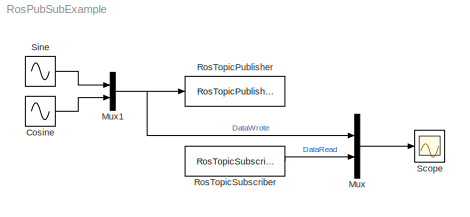
MODEL RosPubSubExample
KIND model
BLOCK [Sin] Cosine
  Phase = pi/2
  Ports = [0, 1]
  SID = 13
  SampleTime = 0
BLOCK [Mux] Mux
  DisplayOption = bar
  Inputs = 2
  Ports = [2, 1]
  SID = 10
BLOCK [Mux] Mux1
  DisplayOption = bar
  Inputs = 2
  Ports = [2, 1]
  SID = 14
BLOCK [Reference] RosTopicPublisher  REF=RosToolbox/RosTopicPublisher
  MultiThreadCoSim = auto
  Ports = [1]
  QueueSize = 1
  SID = 15
  SourceBlock = RosToolbox/RosTopicPublisher
  SourceProductName = Ros Toolbox
  TopicName = /PubSubExample
BLOCK [Reference] RosTopicSubscriber  REF=RosToolbox/RosTopicSubscriber
  MessageSize = 2
  MultiThreadCoSim = auto
  Ports = [0, 1]
  SID = 16
  SourceBlock = RosToolbox/RosTopicSubscriber
  SourceProductName = Ros Toolbox
  TopicName = /PubSubExample
BLOCK [Scope] Scope
  Floating = off
  NumInputPorts = 1
  Ports = [1]
  SID = 9
  ScopeSpecificationString = Simulink.scopes.TimeScopeBlockCfg('CurrentConfiguration', extmgr.ConfigurationSet(extmgr.Configuration('Core','General UI',true),extmgr.Configuration('Core','Source UI',true),extmgr.Configuration('Sources','WiredSimulink',true),extmgr.Configuration('Visuals','Time Domain',true,'SerializedDisplays',{struct('MinYLimReal','-1.25','MaxYLimReal','1.25','YLabelReal','','MinYLimMag','0.00000','MaxYLimMag...<+1432ch>
BLOCK [Sin] Sine
  Ports = [0, 1]
  SID = 12
  SampleTime = 0
LINE Cosine:1 -> Mux1:2
NET Mux1:1 -> Mux:1, RosTopicPublisher:1
LINE Mux:1 -> Scope:1
LINE RosTopicSubscriber:1 -> Mux:2
LINE Sine:1 -> Mux1:1
note: NET lines group one-source signal fan-out (src -> all destinations, sorted); 1:1 wires keep LINE
